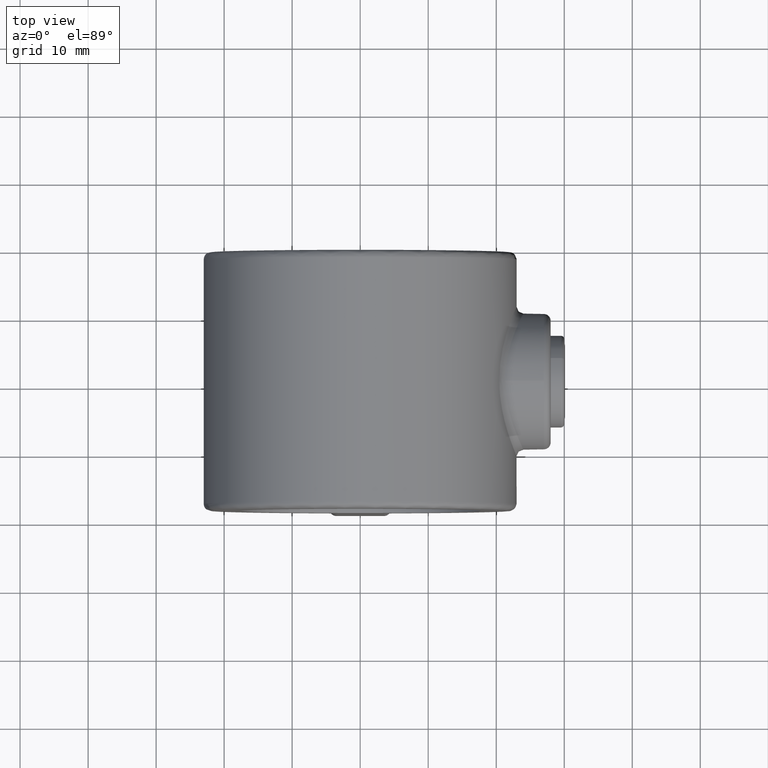
[diagram: clean part render]
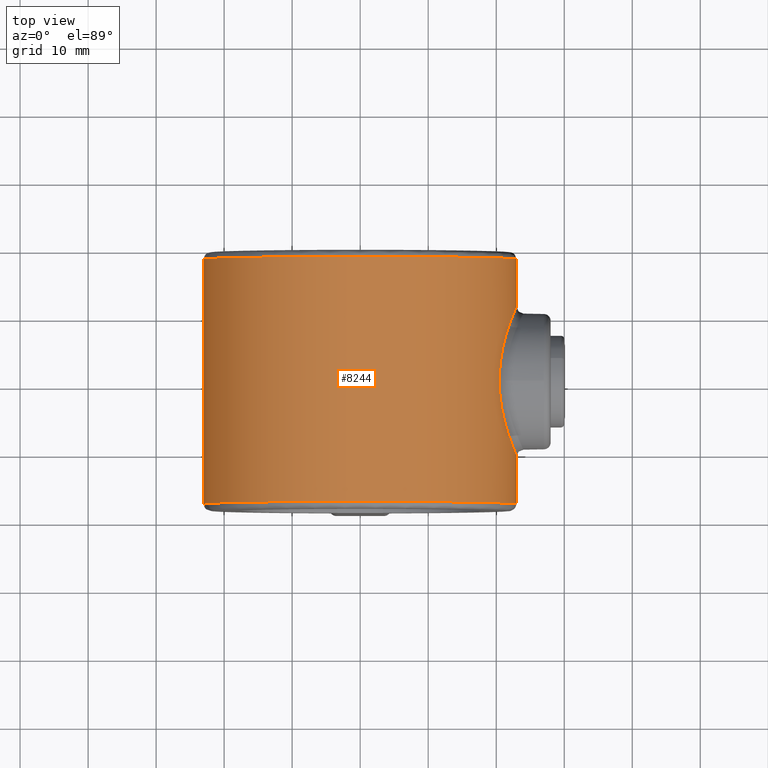
[diagram: same view with one face highlighted and labeled with its STEP entity id]
A machine part, top view. The second image highlights one B-rep face of the part: STEP entity #8244.
In plain terms, the highlighted cylindrical surface (partial cylindrical patch) has radius 23 mm, axis along (-0, -1, -0).
Its self-contained STEP definition (entity closure, byte-faithful):
#44 = CARTESIAN_POINT ( 'NONE',  ( 22.83763202501080869, -10.62608829478893924, -2.815230979567082681 ) ) ;
#89 = CARTESIAN_POINT ( 'NONE',  ( 22.13749066411191535, 8.868188474590359860, -6.246486309403673332 ) ) ;
#123 = CARTESIAN_POINT ( 'NONE',  ( 20.57712126063454861, 2.481969359925620289, -10.27558488481000332 ) ) ;
#161 = CARTESIAN_POINT ( 'NONE',  ( 20.95023083360782223, -4.829221959350454618, -9.495717438055621074 ) ) ;
#198 = CARTESIAN_POINT ( 'NONE',  ( 22.87012165116382789, 10.70128692629639922, -2.465490517900047251 ) ) ;
#353 = CARTESIAN_POINT ( 'NONE',  ( 20.76633251707429650, -3.828847513991735507, 9.888368054000574503 ) ) ;
#829 = FACE_OUTER_BOUND ( 'NONE', #9485, .T. ) ;
#838 = LINE ( 'NONE', #2344, #7796 ) ;
#991 = CARTESIAN_POINT ( 'NONE',  ( 21.89556021387143758, 8.188766093534598056, -7.046961247179513776 ) ) ;
#1028 = CARTESIAN_POINT ( 'NONE',  ( 20.45071325461659129, -0.7183515552171738650, -10.52472010823097115 ) ) ;
#1065 = CARTESIAN_POINT ( 'NONE',  ( 21.56690080275603805, 7.178113706781733327, -7.995038121653374574 ) ) ;
#1074 = DIRECTION ( 'NONE',  ( 0.000000000000000000, 1.000000000000000000, 0.000000000000000000 ) ) ;
#1116 = CARTESIAN_POINT ( 'NONE',  ( 21.09116911822201956, 5.448500998234659498, -9.182947532447663264 ) ) ;
#1152 = CARTESIAN_POINT ( 'NONE',  ( 22.74404016659558536, -10.40762552054759738, -3.484471919791947592 ) ) ;
#1297 = AXIS2_PLACEMENT_3D ( 'NONE', #7286, #10160, #12093 ) ;
#1310 = CARTESIAN_POINT ( 'NONE',  ( 21.89428383690762203, -8.196237828544317594, 7.063608325339932215 ) ) ;
#1691 = CIRCLE ( 'NONE', #1297, 23.00000000000000355 ) ;
#1961 = CARTESIAN_POINT ( 'NONE',  ( 22.83050513220556610, 10.60903482212048132, -2.807985669008748353 ) ) ;
#2009 = CARTESIAN_POINT ( 'NONE',  ( 22.96589279586578414, 10.92293604140102659, 1.432121529155833572 ) ) ;
#2049 = CARTESIAN_POINT ( 'NONE',  ( 22.29110101240144104, -9.277666371880332719, -5.673829680516573326 ) ) ;
#2084 = CARTESIAN_POINT ( 'NONE',  ( 21.81674392581695088, -7.957154001261741882, -7.286562524704420341 ) ) ;
#2116 = ORIENTED_EDGE ( 'NONE', *, *, #11002, .T. ) ;
#2286 = CARTESIAN_POINT ( 'NONE',  ( 20.44194863238065452, -9.757819552369539906E-16, 10.54166666666666430 ) ) ;
#2344 = CARTESIAN_POINT ( 'NONE',  ( -5.270833333333333037, 19.00000000000000000, -22.38790557359536493 ) ) ;
#2645 = VERTEX_POINT ( 'NONE', #8502 ) ;
#2779 = CARTESIAN_POINT ( 'NONE',  ( 22.68225800148542248, 10.25728659645097984, 3.823812273383865090 ) ) ;
#2854 = EDGE_LOOP ( 'NONE', ( #2116 ) ) ;
#2870 = CARTESIAN_POINT ( 'NONE',  ( 21.81463634477258751, 7.950793754870181473, 7.292780359523341360 ) ) ;
#2958 = CARTESIAN_POINT ( 'NONE',  ( 21.40336157759161040, -6.642767665955212841, -8.429616008849421860 ) ) ;
#2993 = CARTESIAN_POINT ( 'NONE',  ( 22.05737277419210685, 8.648694578393486765, -6.522846479785381568 ) ) ;
#3039 = CARTESIAN_POINT ( 'NONE',  ( 21.56779829626731626, -7.192276793543716629, -8.005455168565795532 ) ) ;
#3088 = CARTESIAN_POINT ( 'NONE',  ( 22.50153143174634351, -9.814734853759448541, -4.772660812141221065 ) ) ;
#3123 = CARTESIAN_POINT ( 'NONE',  ( 22.93386408307796742, -10.84880670394190538, -1.777250323796543796 ) ) ;
#3176 = LINE ( 'NONE', #10650, #3585 ) ;
#3246 = CARTESIAN_POINT ( 'NONE',  ( 21.08996365979181675, -5.442898684665716580, 9.185516182531520357 ) ) ;
#3324 = DIRECTION ( 'NONE',  ( 0.000000000000000000, 1.000000000000000000, 0.000000000000000000 ) ) ;
#3389 = VERTEX_POINT ( 'NONE', #4330 ) ;
#3415 = FACE_BOUND ( 'NONE', #2854, .T. ) ;
#3585 = VECTOR ( 'NONE', #1074, 1000.000000000000000 ) ;
#3719 = EDGE_CURVE ( 'NONE', #2645, #6739, #838, .T. ) ;
#3755 = CARTESIAN_POINT ( 'NONE',  ( 20.44194863238065452, 0.7214183516898989845, 10.54166666666666607 ) ) ;
#3780 = CARTESIAN_POINT ( 'NONE',  ( 20.44194863238064741, 0.000000000000000000, 10.54166666666666607 ) ) ;
#3881 = ORIENTED_EDGE ( 'NONE', *, *, #11126, .T. ) ;
#3913 = CARTESIAN_POINT ( 'NONE',  ( 20.71501168917960456, 3.514385744236766307, -9.995014577957398672 ) ) ;
#3956 = CARTESIAN_POINT ( 'NONE',  ( 22.96643577962701954, -10.92419911441441904, 1.427154330680189265 ) ) ;
#3999 = CARTESIAN_POINT ( 'NONE',  ( 22.95875285506628671, 10.90582557486977144, -1.421884153053921684 ) ) ;
#4041 = CARTESIAN_POINT ( 'NONE',  ( 20.48492088993701188, -1.428549434803358276, -10.45798365423154053 ) ) ;
#4080 = CARTESIAN_POINT ( 'NONE',  ( 21.81348651855180165, 7.947360118271398655, -7.296213757157264723 ) ) ;
#4160 = CARTESIAN_POINT ( 'NONE',  ( 21.56280137869504188, -7.164742079988287493, 8.006099116654869619 ) ) ;
#4242 = CARTESIAN_POINT ( 'NONE',  ( 20.71145597642996350, -3.491326165029325246, 10.00236578381193198 ) ) ;
#4261 = CIRCLE ( 'NONE', #6148, 23.00000000000000355 ) ;
#4330 = CARTESIAN_POINT ( 'NONE',  ( 5.270833333333333037, 18.00000000000000000, -22.38790557359536493 ) ) ;
#4679 = CARTESIAN_POINT ( 'NONE',  ( 22.13893590373858800, 8.872096353053883888, 6.241306949815191629 ) ) ;
#4720 = CARTESIAN_POINT ( 'NONE',  ( 22.73591418797713359, 10.38549995068284915, 3.492233079625015169 ) ) ;
#4769 = CYLINDRICAL_SURFACE ( 'NONE', #9322, 23.00000000000000355 ) ;
#4866 = DIRECTION ( 'NONE',  ( 0.000000000000000000, 0.000000000000000000, -1.000000000000000000 ) ) ;
#4890 = CARTESIAN_POINT ( 'NONE',  ( 22.73497126396549817, -10.38324766971110336, 3.498112807062804031 ) ) ;
#4934 = CARTESIAN_POINT ( 'NONE',  ( 22.56403829837452690, -9.969339661347310866, 4.468855564632132626 ) ) ;
#4971 = CARTESIAN_POINT ( 'NONE',  ( 20.51003817713023381, 1.777367166112261421, -10.40883749860924290 ) ) ;
#5012 = CARTESIAN_POINT ( 'NONE',  ( 20.94961640555166582, 4.825932149477718092, -9.497033732411997775 ) ) ;
#5053 = CARTESIAN_POINT ( 'NONE',  ( 20.70912242373310974, -3.519168777924806868, -10.01064783536413216 ) ) ;
#5219 = CARTESIAN_POINT ( 'NONE',  ( 20.61633918661012643, -2.812318795790194947, 10.19697447674611546 ) ) ;
#5676 = CARTESIAN_POINT ( 'NONE',  ( 22.86958969973938238, 10.70004956072797064, 2.470357861108841036 ) ) ;
#5795 = CARTESIAN_POINT ( 'NONE',  ( 20.45028228896532241, 0.7058263244569571437, -10.52555685768856719 ) ) ;
#5830 = CARTESIAN_POINT ( 'NONE',  ( 20.51063283994137265, -1.784755038498175184, -10.40766697255290296 ) ) ;
#5872 = CARTESIAN_POINT ( 'NONE',  ( 22.36095881426954080, -9.458470413538138999, 5.393113550371393394 ) ) ;
#5913 = CARTESIAN_POINT ( 'NONE',  ( 20.44205738124368210, -0.3627792260925087886, -10.54145578547801421 ) ) ;
#5957 = CARTESIAN_POINT ( 'NONE',  ( 20.61149015165347720, -2.840642055372406549, -10.20729341961372150 ) ) ;
#6109 = CARTESIAN_POINT ( 'NONE',  ( 21.39978179257980173, -6.611166755386538085, 8.432162569158895948 ) ) ;
#6148 = AXIS2_PLACEMENT_3D ( 'NONE', #10885, #3324, #11916 ) ;
#6531 = ORIENTED_EDGE ( 'NONE', *, *, #3719, .T. ) ;
#6692 = CARTESIAN_POINT ( 'NONE',  ( 20.44194863238065452, -9.757819552369539906E-16, 10.54166666666666430 ) ) ;
#6739 = VERTEX_POINT ( 'NONE', #10318 ) ;
#6769 = CARTESIAN_POINT ( 'NONE',  ( 22.99183046270619712, -10.98144021541068405, -0.7099467174165783323 ) ) ;
#6806 = CARTESIAN_POINT ( 'NONE',  ( 21.64915911458364306, 7.442034364593767215, -7.770253465403322402 ) ) ;
#6851 = CARTESIAN_POINT ( 'NONE',  ( 21.40439143098384989, 6.627340325772236973, -8.420443709914270158 ) ) ;
#6891 = CARTESIAN_POINT ( 'NONE',  ( 22.06094446391602304, -8.658583405460278826, -6.510738351160620496 ) ) ;
#6933 = CARTESIAN_POINT ( 'NONE',  ( 22.56674677829554554, -9.976018535147828104, -4.455352596503548313 ) ) ;
#7286 = CARTESIAN_POINT ( 'NONE',  ( 0.000000000000000000, 18.00000000000000000, 0.000000000000000000 ) ) ;
#7511 = CARTESIAN_POINT ( 'NONE',  ( 0.000000000000000000, 19.00000000000000000, 0.000000000000000000 ) ) ;
#7576 = CARTESIAN_POINT ( 'NONE',  ( 22.50594521466842224, 9.827867945001171890, 4.786220156497746459 ) ) ;
#7640 = B_SPLINE_CURVE_WITH_KNOTS ( 'NONE', 3,
 ( #6692, #3755, #9541, #9581, #9618, #7706, #11537, #10486, #10448, #2870, #8643, #9451, #4679, #11368, #7576, #2779, #4720, #11410, #5676, #2009, #11699, #8880, #10761, #3999, #9771, #198, #1961, #10684, #7752, #7874, #8758, #89, #2993, #991, #4080, #6806, #1065, #6851, #7791, #1116, #5012, #8721, #3913, #9698, #123, #4971, #10728, #5795, #11665, #5913, #1028, #4041, #5830, #5957, #5053, #161, #8803, #2958, #3039, #2084, #9730, #6891, #7834, #2049, #8843, #3088, #6933, #1152, #44, #3123, #7922, #6769, #9663, #11581, #3956, #9821, #10605, #4890, #10646, #4934, #11626, #5872, #11870, #8985, #1310, #8949, #4160, #6109, #8079, #3246, #10918, #353, #4242, #5219, #9905, #11914, #11791, #2286 ),
 .UNSPECIFIED., .T., .F.,
 ( 4, 2, 2, 2, 2, 2, 2, 2, 2, 2, 2, 2, 2, 2, 2, 2, 2, 2, 2, 2, 2, 2, 2, 2, 2, 2, 2, 2, 2, 2, 2, 2, 2, 2, 2, 2, 2, 2, 2, 2, 2, 2, 2, 2, 2, 2, 2, 2, 4 ),
 ( 0.000000000000000000, 0.002139226690906382167, 0.004278453381812763467, 0.006417680072719145201, 0.008556906763625526935, 0.009626520109078717802, 0.01069613345453191214, 0.01283536014543830081, 0.01390497349089149341, 0.01497458683634468948, 0.01711381352725108509, 0.01818342687270427596, 0.01925304021815747030, 0.02032265356361066810, 0.02139226690906386244, 0.02353149359997025458, 0.02460110694542345239, 0.02567072029087664672, 0.02674033363632984106, 0.02780994698178303540, 0.02994917367268942407, 0.03101878701814261841, 0.03208840036359581621, 0.03315801370904901402, 0.03422762705450220488, 0.03529724039995540963, 0.03636685374540860050, 0.03850608043631498917, 0.04064530712722138478, 0.04278453381812777345, 0.04385414716358097126, 0.04492376050903416906, 0.04599337385448736687, 0.04706298719994056468, 0.04920221389084696029, 0.05027182723630014421, 0.05134144058175333508, 0.05348066727265972375, 0.05455028061811292156, 0.05561989396356610549, 0.05668950730901929635, 0.05775912065447249416, 0.05989834734537888283, 0.06096796069083207370, 0.06203757403628526457, 0.06417680072719164630, 0.06524641407264483717, 0.06631602741809802803, 0.06845525410900440977 ),
 .UNSPECIFIED. ) ;
#7706 = CARTESIAN_POINT ( 'NONE',  ( 20.95023759139963815, 4.829197107123786914, 9.495697850877984791 ) ) ;
#7752 = CARTESIAN_POINT ( 'NONE',  ( 22.68309687221011117, 10.25931171489819604, -3.818953656504465943 ) ) ;
#7791 = CARTESIAN_POINT ( 'NONE',  ( 21.32377947236670934, 6.339096772481653375, -8.621914755618776738 ) ) ;
#7796 = VECTOR ( 'NONE', #9880, 1000.000000000000000 ) ;
#7834 = CARTESIAN_POINT ( 'NONE',  ( 22.13962909694217629, -8.873958829741251719, -6.238778008426543842 ) ) ;
#7874 = CARTESIAN_POINT ( 'NONE',  ( 22.50616916382396226, 9.828449082557968453, -4.785552480929218255 ) ) ;
#7922 = CARTESIAN_POINT ( 'NONE',  ( 22.95857461713750425, -10.90541796409377007, -1.425532853611130690 ) ) ;
#8079 = CARTESIAN_POINT ( 'NONE',  ( 21.32013705088794353, -6.325630996009702578, 8.630864661728701037 ) ) ;
#8244 = ADVANCED_FACE ( 'NONE', ( #3415, #829 ), #4769, .T. ) ;
#8502 = CARTESIAN_POINT ( 'NONE',  ( -5.270833333333333037, 18.00000000000000000, -22.38790557359536493 ) ) ;
#8643 = CARTESIAN_POINT ( 'NONE',  ( 21.89679737638028101, 8.192375519079595492, 7.043144017232364718 ) ) ;
#8721 = CARTESIAN_POINT ( 'NONE',  ( 20.76961743192327603, 3.847841706890473557, -9.881447821302890233 ) ) ;
#8758 = CARTESIAN_POINT ( 'NONE',  ( 22.36695560480938738, 9.479976299371994486, -5.391440757471531064 ) ) ;
#8803 = CARTESIAN_POINT ( 'NONE',  ( 21.09500618400796768, -5.464197876082838690, -9.174040929407322409 ) ) ;
#8843 = CARTESIAN_POINT ( 'NONE',  ( 22.36389316878978306, -9.466000948709687890, -5.380844760497653034 ) ) ;
#8880 = CARTESIAN_POINT ( 'NONE',  ( 23.00012696348664676, 11.00028905528049705, -0.3511864955767783902 ) ) ;
#8949 = CARTESIAN_POINT ( 'NONE',  ( 21.64634574499526920, -7.433170181794395148, 7.778127841219042438 ) ) ;
#8985 = CARTESIAN_POINT ( 'NONE',  ( 22.05757110105097851, -8.654741934063292064, 6.542905305676773864 ) ) ;
#9014 = VERTEX_POINT ( 'NONE', #11859 ) ;
#9213 = ORIENTED_EDGE ( 'NONE', *, *, #10060, .T. ) ;
#9322 = AXIS2_PLACEMENT_3D ( 'NONE', #7511, #9640, #4866 ) ;
#9451 = CARTESIAN_POINT ( 'NONE',  ( 22.05892416883193263, 8.653009604440105917, 6.517628211508563751 ) ) ;
#9485 = EDGE_LOOP ( 'NONE', ( #3881, #6531, #9802, #9213 ) ) ;
#9541 = CARTESIAN_POINT ( 'NONE',  ( 20.47707192993136616, 1.431185500191071602, 10.47432176768561796 ) ) ;
#9581 = CARTESIAN_POINT ( 'NONE',  ( 20.61013257451777392, 2.828624354384118078, 10.21001109585085764 ) ) ;
#9618 = CARTESIAN_POINT ( 'NONE',  ( 20.70926568079594787, 3.520008691718088389, 10.01034703561621519 ) ) ;
#9640 = DIRECTION ( 'NONE',  ( -0.000000000000000000, -1.000000000000000000, -0.000000000000000000 ) ) ;
#9663 = CARTESIAN_POINT ( 'NONE',  ( 23.00010898821804517, -11.00024813132366575, -0.3496253063496383984 ) ) ;
#9698 = CARTESIAN_POINT ( 'NONE',  ( 20.61876156160397144, 2.831794390908840331, -10.19208994083896336 ) ) ;
#9730 = CARTESIAN_POINT ( 'NONE',  ( 21.89968227110368559, -8.200733343168229439, -7.034124035156598787 ) ) ;
#9771 = CARTESIAN_POINT ( 'NONE',  ( 22.93424439079139887, 10.84968182105210666, -1.772439577627565654 ) ) ;
#9785 = VERTEX_POINT ( 'NONE', #3780 ) ;
#9802 = ORIENTED_EDGE ( 'NONE', *, *, #11241, .T. ) ;
#9821 = CARTESIAN_POINT ( 'NONE',  ( 22.86894597619048852, -10.69855650292293703, 2.476851916023350419 ) ) ;
#9880 = DIRECTION ( 'NONE',  ( -0.000000000000000000, -1.000000000000000000, -0.000000000000000000 ) ) ;
#9905 = CARTESIAN_POINT ( 'NONE',  ( 20.57580984847875882, -2.469299873317782890, 10.27820009846697502 ) ) ;
#10060 = EDGE_CURVE ( 'NONE', #9014, #3389, #3176, .T. ) ;
#10160 = DIRECTION ( 'NONE',  ( -0.000000000000000000, -1.000000000000000000, -0.000000000000000000 ) ) ;
#10318 = CARTESIAN_POINT ( 'NONE',  ( -5.270833333333333037, -18.00000000000000000, -22.38790557359536493 ) ) ;
#10448 = CARTESIAN_POINT ( 'NONE',  ( 21.56810589469992934, 7.192988665604676868, 8.004300408074406903 ) ) ;
#10486 = CARTESIAN_POINT ( 'NONE',  ( 21.40355494184684559, 6.643930932282366086, 8.429296298220151584 ) ) ;
#10605 = CARTESIAN_POINT ( 'NONE',  ( 22.82847724524003041, -10.60428287383845358, 2.824241180889560887 ) ) ;
#10646 = CARTESIAN_POINT ( 'NONE',  ( 22.68174218495062533, -10.25604703678445340, 3.826887226387380547 ) ) ;
#10650 = CARTESIAN_POINT ( 'NONE',  ( 5.270833333333333037, 19.00000000000000000, -22.38790557359536493 ) ) ;
#10684 = CARTESIAN_POINT ( 'NONE',  ( 22.73701862020748266, 10.38812725337350429, -3.484929321142883563 ) ) ;
#10728 = CARTESIAN_POINT ( 'NONE',  ( 20.48433321358039194, 1.419821310658801794, -10.45913407781977078 ) ) ;
#10761 = CARTESIAN_POINT ( 'NONE',  ( 22.99170433566616012, 10.98115172891135138, -0.7124738212943682036 ) ) ;
#10885 = CARTESIAN_POINT ( 'NONE',  ( 0.000000000000000000, -18.00000000000000000, 0.000000000000000000 ) ) ;
#10918 = CARTESIAN_POINT ( 'NONE',  ( 20.94809304432384067, -4.819868572812467278, 9.500471237294126681 ) ) ;
#11002 = EDGE_CURVE ( 'NONE', #9785, #9785, #7640, .T. ) ;
#11126 = EDGE_CURVE ( 'NONE', #3389, #2645, #1691, .T. ) ;
#11241 = EDGE_CURVE ( 'NONE', #6739, #9014, #4261, .T. ) ;
#11368 = CARTESIAN_POINT ( 'NONE',  ( 22.36733584512344208, 9.480879586982601026, 5.389607477180787143 ) ) ;
#11410 = CARTESIAN_POINT ( 'NONE',  ( 22.82988185869366049, 10.60757925615679653, 2.813179724720249020 ) ) ;
#11537 = CARTESIAN_POINT ( 'NONE',  ( 21.09236457122230490, 5.453673772944756415, 9.180269986579389752 ) ) ;
#11581 = CARTESIAN_POINT ( 'NONE',  ( 22.99977873807265283, -10.99949625734024572, 0.7205437521028570380 ) ) ;
#11626 = CARTESIAN_POINT ( 'NONE',  ( 22.49955936316049687, -9.809830660449538442, 4.782047817020995240 ) ) ;
#11665 = CARTESIAN_POINT ( 'NONE',  ( 20.44184192128122035, 0.3493097267658064609, -10.54187359631094267 ) ) ;
#11699 = CARTESIAN_POINT ( 'NONE',  ( 22.99974166751697879, 10.99941185950259381, 0.7270298427194763491 ) ) ;
#11791 = CARTESIAN_POINT ( 'NONE',  ( 20.44194863238065452, -0.7214183516898984294, 10.54166666666666430 ) ) ;
#11859 = CARTESIAN_POINT ( 'NONE',  ( 5.270833333333333037, -18.00000000000000000, -22.38790557359536493 ) ) ;
#11870 = CARTESIAN_POINT ( 'NONE',  ( 22.28679543741124292, -9.266435407910510236, 5.690805066967988601 ) ) ;
#11914 = CARTESIAN_POINT ( 'NONE',  ( 20.47714443663548778, -1.429627080135747130, 10.47415621712292477 ) ) ;
#11916 = DIRECTION ( 'NONE',  ( 0.000000000000000000, 0.000000000000000000, 1.000000000000000000 ) ) ;
#12093 = DIRECTION ( 'NONE',  ( 0.000000000000000000, 0.000000000000000000, 1.000000000000000000 ) ) ;